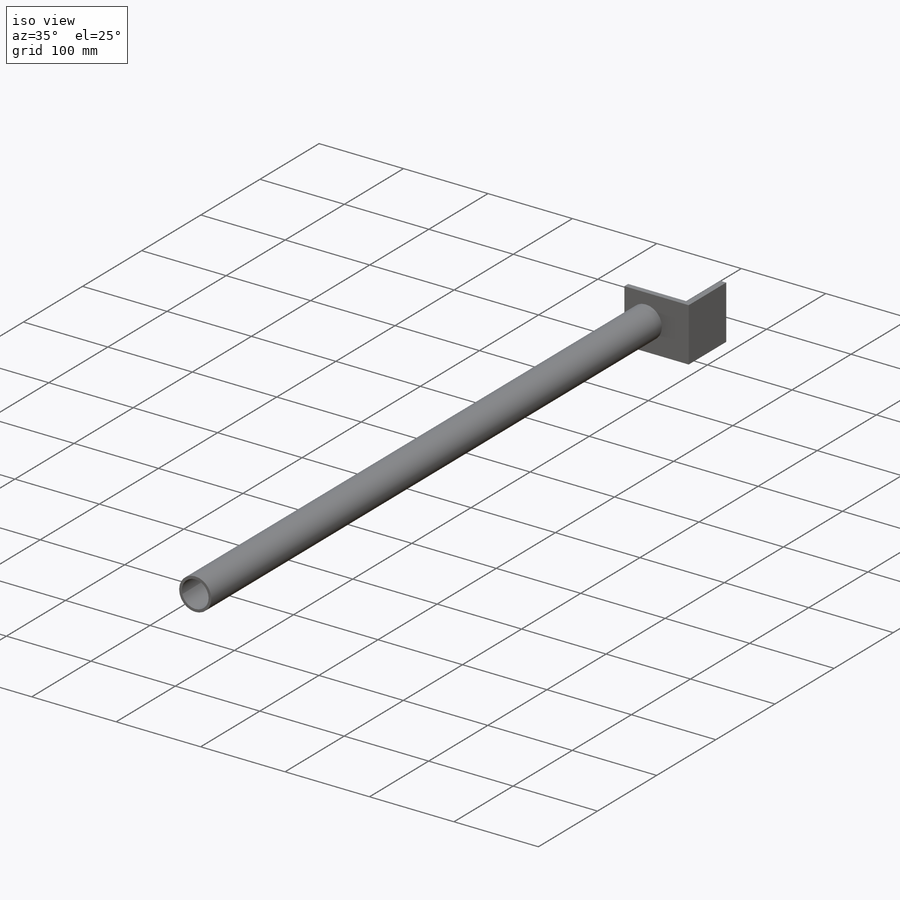
[diagram: iso view]
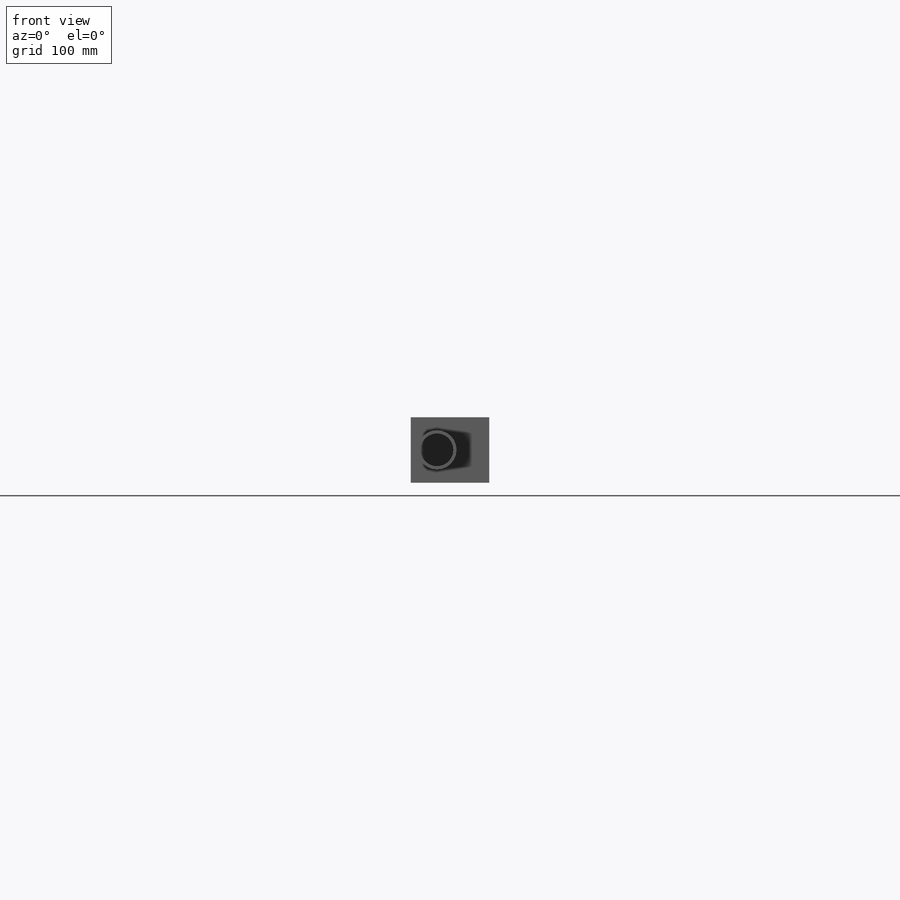
[diagram: front view]
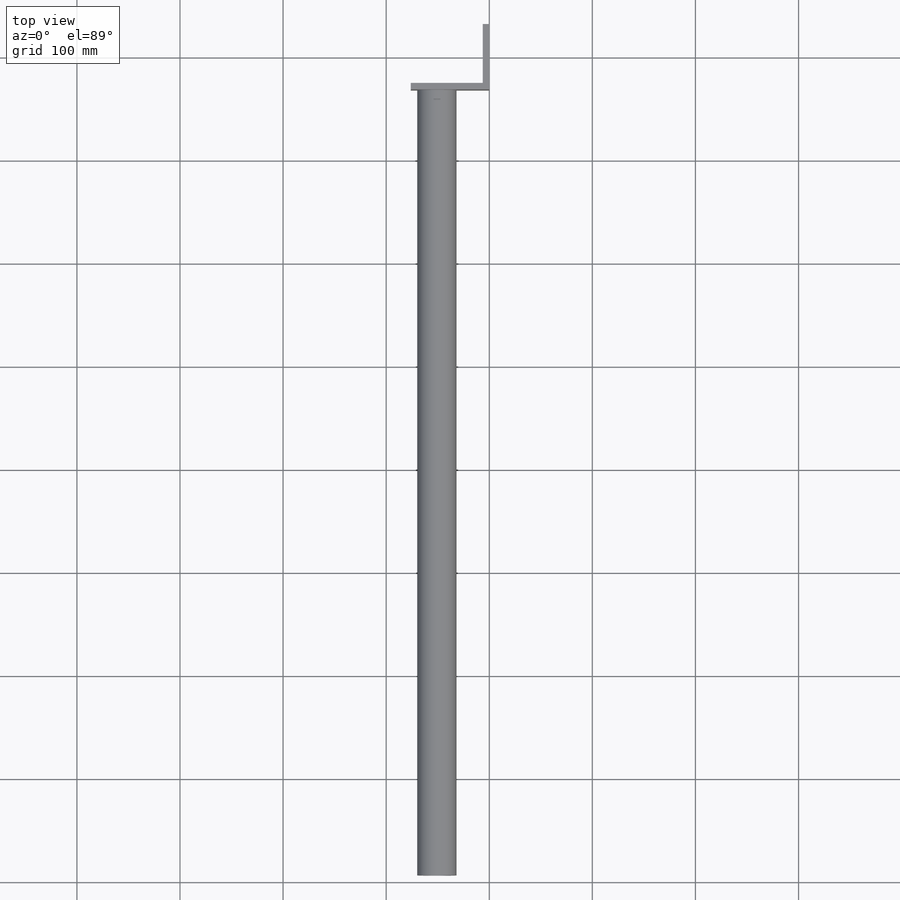
[diagram: top view]
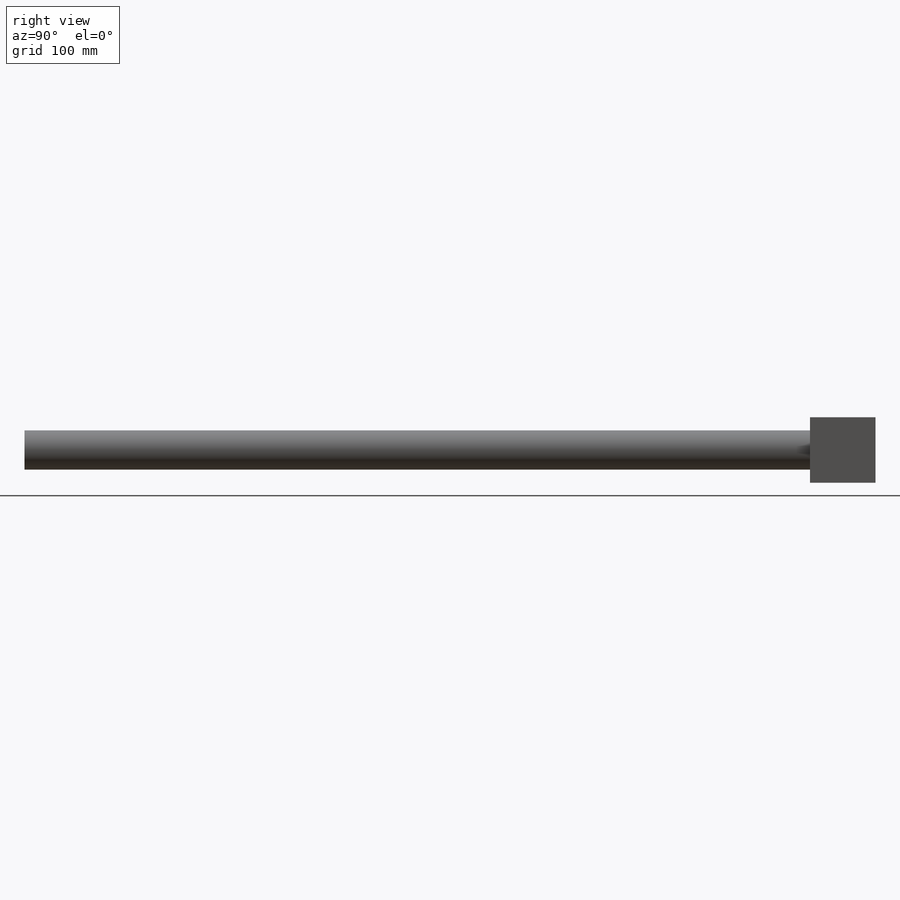
[diagram: right view]
SOLIDWORKS PART (.sldprt)
format: sldprt  version: not decoded by parser v0  size: 402,944 bytes
history: native  units: mm
features: sketch x4, extrude x3, material x1, revolve x1 (+16 scaffold rows collapsed)
feature tree (25):
  scaffold x16  (default folders/planes/origin — collapsed)
  material  "Material <not specified>"
  sketch  "Sketch1"  dims[D1=63.5mm D2=76.2mm D3=6.35mm]
  extrude  "Boss-Extrude1"  Depth=63.5mm
  sketch  "Sketch2"  dims[c1.D2=38.1mm c1.D3=~32.381486mm c1.D1=25.4mm c2.D3=3.175mm]
  extrude  "Boss-Extrude2"  Depth=762mm
  sketch  "Sketch3"  dims[D1=38.1mm D2=50.8mm D3=38.1mm]
  extrude  "Boss-Extrude3"  Depth=63.5mm
  sketch  "Sketch4"  dims[D1=203.2mm D2=12.7mm D3=25.4mm D4=19.05mm D5=25.4mm D6=25.4mm D7=25.4mm D8=38.1mm]
  revolve  "Revolve1"  Angle=360deg
decode coverage: 8 of 8 modeling features carry decoded parameters
note: ~ marks probable driven/reference dimensions
note: suppression state not decoded; provenance and decode notes live in map.json
